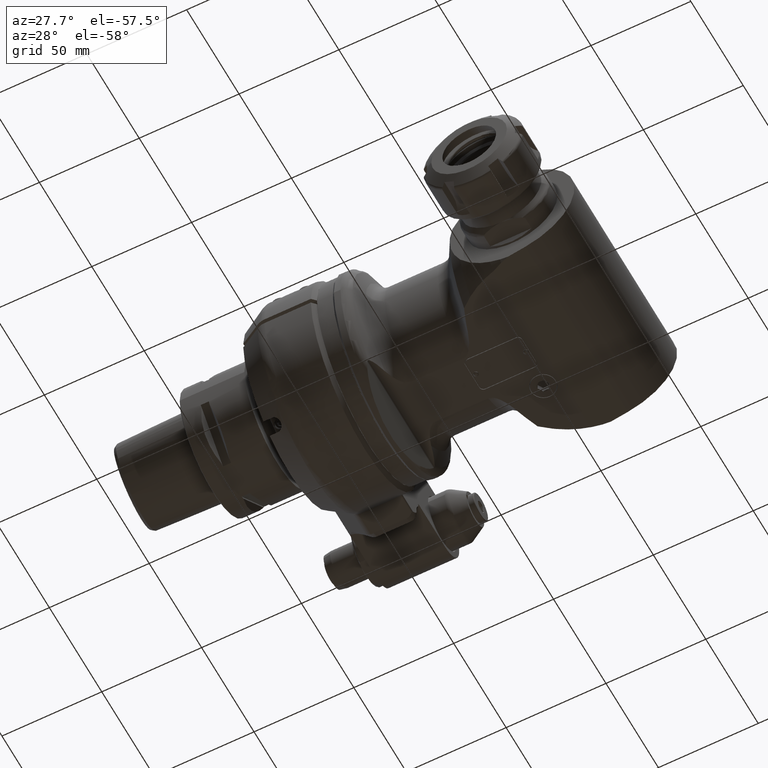
[diagram: clean part render]
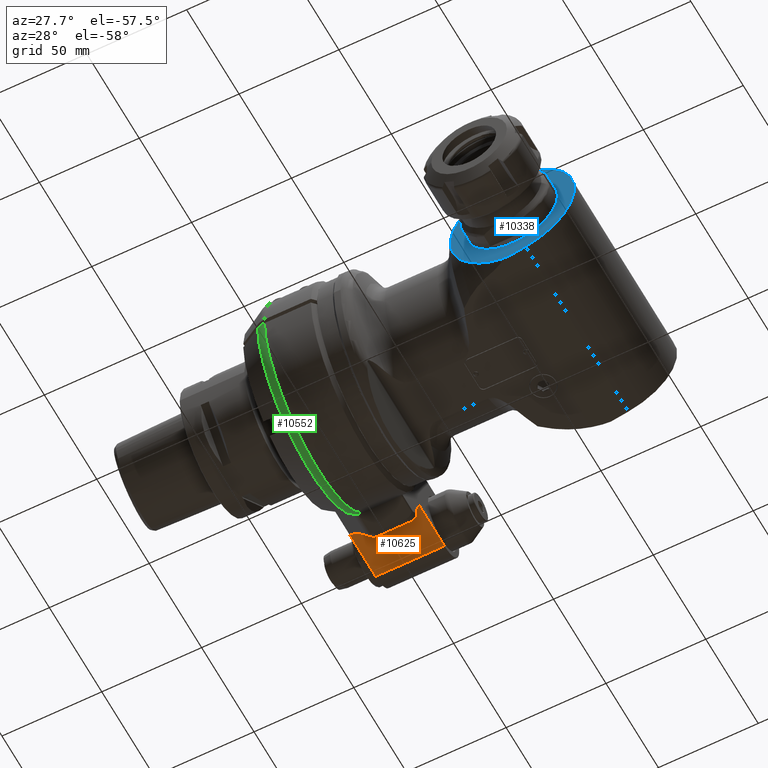
[diagram: same view with three faces highlighted in distinct colors, each labeled with its STEP entity id]
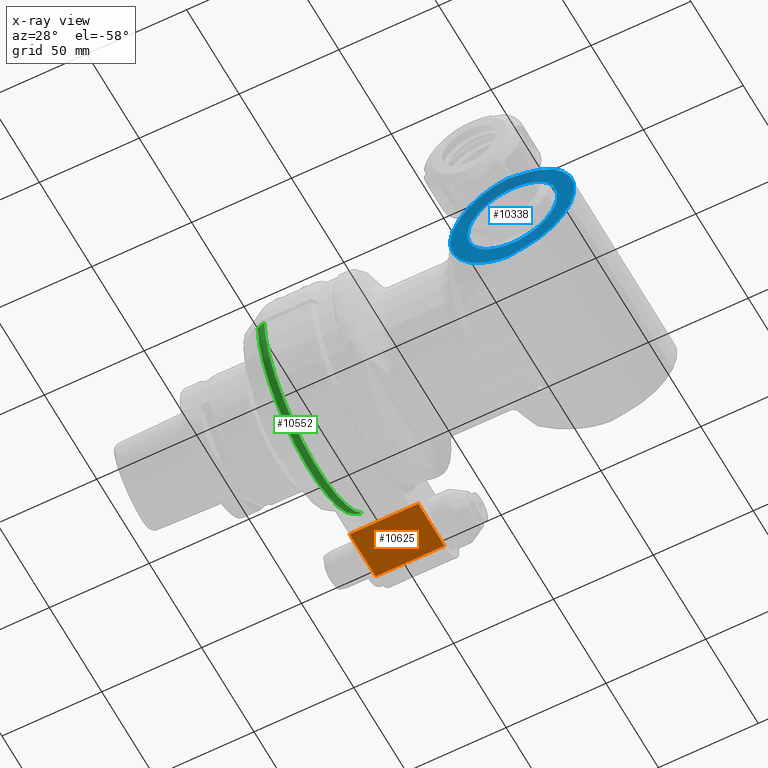
[diagram: x-ray of the same camera — body ghosted, the three highlighted faces saturated]
A machine part, auxiliary view with three faces highlighted in distinct colors.
The next image is the same camera in x-ray (body ghosted, the three faces saturated) — at least one of them is partly hidden behind the body in this view.
Their STEP definitions:

[orange] entity #10625 — the highlighted planar face has unit normal (0, 0, 1).
#1259=LINE('',#21717,#2024);
#1271=LINE('',#21766,#2036);
#1286=LINE('',#21808,#2051);
#1299=LINE('',#21846,#2064);
#2024=VECTOR('',#13361,25.);
#2036=VECTOR('',#13391,34.5);
#2051=VECTOR('',#13430,25.);
#2064=VECTOR('',#13473,34.5);
#2724=FACE_OUTER_BOUND('',#3339,.T.);
#3339=EDGE_LOOP('',(#8784,#8785,#8786,#8787));
#4741=VERTEX_POINT('',#21714);
#4742=VERTEX_POINT('',#21716);
#4761=VERTEX_POINT('',#21764);
#4773=VERTEX_POINT('',#21806);
#6126=EDGE_CURVE('',#4742,#4741,#1259,.T.);
#6148=EDGE_CURVE('',#4741,#4761,#1271,.T.);
#6169=EDGE_CURVE('',#4773,#4761,#1286,.T.);
#6189=EDGE_CURVE('',#4742,#4773,#1299,.T.);
#8784=ORIENTED_EDGE('',*,*,#6169,.F.);
#8785=ORIENTED_EDGE('',*,*,#6189,.F.);
#8786=ORIENTED_EDGE('',*,*,#6126,.T.);
#8787=ORIENTED_EDGE('',*,*,#6148,.T.);
#10197=PLANE('',#11473);
#10625=ADVANCED_FACE('',(#2724),#10197,.F.);
#11473=AXIS2_PLACEMENT_3D('',#21847,#13474,#13475);
#13361=DIRECTION('',(0.,-1.,0.));
#13391=DIRECTION('',(-1.,0.,0.));
#13430=DIRECTION('',(0.,-1.,0.));
#13473=DIRECTION('',(-1.,0.,0.));
#13474=DIRECTION('center_axis',(0.,0.,1.));
#13475=DIRECTION('ref_axis',(-1.,0.,0.));
#21714=CARTESIAN_POINT('',(-5.,57.25,-15.));
#21716=CARTESIAN_POINT('',(-5.,82.25,-15.));
#21717=CARTESIAN_POINT('',(-5.,82.25,-15.));
#21764=CARTESIAN_POINT('',(-39.5,57.25,-15.));
#21766=CARTESIAN_POINT('',(-5.,57.25,-15.));
#21806=CARTESIAN_POINT('',(-39.5,82.25,-15.));
#21808=CARTESIAN_POINT('',(-39.5,82.25,-15.));
#21846=CARTESIAN_POINT('',(-5.,82.25,-15.));
#21847=CARTESIAN_POINT('Origin',(-45.5,95.75,-15.));

[blue] entity #10338 — the highlighted planar face has unit normal (-0, -1, -0).
#228=(
BOUNDED_CURVE()
B_SPLINE_CURVE(2,(#14790,#14791,#14792),.UNSPECIFIED.,.F.,.F.)
B_SPLINE_CURVE_WITH_KNOTS((3,3),(-4.03042303379879,-3.48086593786656),
 .UNSPECIFIED.)
CURVE()
GEOMETRIC_REPRESENTATION_ITEM()
RATIONAL_B_SPLINE_CURVE((1.00758479886231,1.00783042569584,1.00786805298821))
REPRESENTATION_ITEM('')
);
#229=(
BOUNDED_CURVE()
B_SPLINE_CURVE(2,(#14795,#14796,#14797),.UNSPECIFIED.,.F.,.F.)
B_SPLINE_CURVE_WITH_KNOTS((3,3),(3.20708756850674,3.6230802469693),
 .UNSPECIFIED.)
CURVE()
GEOMETRIC_REPRESENTATION_ITEM()
RATIONAL_B_SPLINE_CURVE((1.00191676364348,1.00192044707155,1.00189283690553))
REPRESENTATION_ITEM('')
);
#230=(
BOUNDED_CURVE()
B_SPLINE_CURVE(2,(#14804,#14805,#14806),.UNSPECIFIED.,.F.,.F.)
B_SPLINE_CURVE_WITH_KNOTS((3,3),(-3.62308024667489,-3.20708756850674),
 .UNSPECIFIED.)
CURVE()
GEOMETRIC_REPRESENTATION_ITEM()
RATIONAL_B_SPLINE_CURVE((1.00189283690557,1.00192044707155,1.00191676364348))
REPRESENTATION_ITEM('')
);
#231=(
BOUNDED_CURVE()
B_SPLINE_CURVE(2,(#14808,#14809,#14810),.UNSPECIFIED.,.F.,.F.)
B_SPLINE_CURVE_WITH_KNOTS((3,3),(-4.03042302568929,-3.48086593755319),
 .UNSPECIFIED.)
CURVE()
GEOMETRIC_REPRESENTATION_ITEM()
RATIONAL_B_SPLINE_CURVE((1.00758479886956,1.00783042569654,1.00786805298825))
REPRESENTATION_ITEM('')
);
#232=(
BOUNDED_CURVE()
B_SPLINE_CURVE(2,(#14812,#14813,#14814),.UNSPECIFIED.,.F.,.F.)
B_SPLINE_CURVE_WITH_KNOTS((3,3),(-4.59394729422955,-3.96600201895405),
 .UNSPECIFIED.)
CURVE()
GEOMETRIC_REPRESENTATION_ITEM()
RATIONAL_B_SPLINE_CURVE((1.0170191739307,1.0179088753971,1.0182373633069))
REPRESENTATION_ITEM('')
);
#233=(
BOUNDED_CURVE()
B_SPLINE_CURVE(2,(#14816,#14817,#14818),.UNSPECIFIED.,.F.,.F.)
B_SPLINE_CURVE_WITH_KNOTS((3,3),(-5.37267851345797,-4.60245151242239),
 .UNSPECIFIED.)
CURVE()
GEOMETRIC_REPRESENTATION_ITEM()
RATIONAL_B_SPLINE_CURVE((1.03008187879672,1.03261146674929,1.03379752626134))
REPRESENTATION_ITEM('')
);
#234=(
BOUNDED_CURVE()
B_SPLINE_CURVE(2,(#14820,#14821,#14822),.UNSPECIFIED.,.F.,.F.)
B_SPLINE_CURVE_WITH_KNOTS((3,3),(-6.41278495679146,-5.36592678001913),
 .UNSPECIFIED.)
CURVE()
GEOMETRIC_REPRESENTATION_ITEM()
RATIONAL_B_SPLINE_CURVE((1.0510346879787,1.05766659348912,1.0607732138904))
REPRESENTATION_ITEM('')
);
#235=(
BOUNDED_CURVE()
B_SPLINE_CURVE(2,(#14824,#14825,#14826),.UNSPECIFIED.,.F.,.F.)
B_SPLINE_CURVE_WITH_KNOTS((3,3),(6.38102259223995,12.5133383101449),
 .UNSPECIFIED.)
CURVE()
GEOMETRIC_REPRESENTATION_ITEM()
RATIONAL_B_SPLINE_CURVE((1.33365869793948,1.41222892327313,1.33365869794272))
REPRESENTATION_ITEM('')
);
#236=(
BOUNDED_CURVE()
B_SPLINE_CURVE(2,(#14828,#14829,#14830),.UNSPECIFIED.,.F.,.F.)
B_SPLINE_CURVE_WITH_KNOTS((3,3),(2.47400310158886,3.52086127835959),
 .UNSPECIFIED.)
CURVE()
GEOMETRIC_REPRESENTATION_ITEM()
RATIONAL_B_SPLINE_CURVE((1.05103468797891,1.0576665934893,1.06077321389056))
REPRESENTATION_ITEM('')
);
#237=(
BOUNDED_CURVE()
B_SPLINE_CURVE(2,(#14832,#14833,#14834),.UNSPECIFIED.,.F.,.F.)
B_SPLINE_CURVE_WITH_KNOTS((3,3),(2.47232019756793,3.24254735063516),
 .UNSPECIFIED.)
CURVE()
GEOMETRIC_REPRESENTATION_ITEM()
RATIONAL_B_SPLINE_CURVE((1.03008187879674,1.03261146724862,1.03379752672957))
REPRESENTATION_ITEM('')
);
#238=(
BOUNDED_CURVE()
B_SPLINE_CURVE(2,(#14835,#14836,#14837),.UNSPECIFIED.,.F.,.F.)
B_SPLINE_CURVE_WITH_KNOTS((3,3),(2.6029626360924,3.23090775455804),
 .UNSPECIFIED.)
CURVE()
GEOMETRIC_REPRESENTATION_ITEM()
RATIONAL_B_SPLINE_CURVE((1.01701917435143,1.01790887546296,1.01823736329817))
REPRESENTATION_ITEM('')
);
#680=FACE_BOUND('',#3008,.T.);
#802=LINE('',#14776,#1567);
#803=LINE('',#14802,#1568);
#1567=VECTOR('',#11984,8.87507655635602);
#1568=VECTOR('',#11997,8.87507655635602);
#2437=FACE_OUTER_BOUND('',#3007,.T.);
#3007=EDGE_LOOP('',(#6905,#6906,#6907,#6908,#6909,#6910,#6911,#6912,#6913,
#6914,#6915,#6916,#6917,#6918));
#3008=EDGE_LOOP('',(#6919));
#3650=CIRCLE('',#10982,31.);
#3651=CIRCLE('',#10983,22.5);
#4088=VERTEX_POINT('',#14773);
#4089=VERTEX_POINT('',#14775);
#4091=VERTEX_POINT('',#14787);
#4092=VERTEX_POINT('',#14789);
#4093=VERTEX_POINT('',#14799);
#4094=VERTEX_POINT('',#14801);
#4095=VERTEX_POINT('',#14803);
#4096=VERTEX_POINT('',#14807);
#4097=VERTEX_POINT('',#14811);
#4098=VERTEX_POINT('',#14815);
#4099=VERTEX_POINT('',#14819);
#4100=VERTEX_POINT('',#14823);
#4101=VERTEX_POINT('',#14827);
#4102=VERTEX_POINT('',#14831);
#4103=VERTEX_POINT('',#14838);
#5243=EDGE_CURVE('',#4089,#4088,#802,.T.);
#5247=EDGE_CURVE('',#4092,#4091,#228,.T.);
#5249=EDGE_CURVE('',#4089,#4091,#229,.T.);
#5250=EDGE_CURVE('',#4088,#4093,#3650,.T.);
#5251=EDGE_CURVE('',#4093,#4094,#803,.T.);
#5252=EDGE_CURVE('',#4095,#4094,#230,.T.);
#5253=EDGE_CURVE('',#4096,#4095,#231,.T.);
#5254=EDGE_CURVE('',#4097,#4096,#232,.T.);
#5255=EDGE_CURVE('',#4098,#4097,#233,.T.);
#5256=EDGE_CURVE('',#4099,#4098,#234,.T.);
#5257=EDGE_CURVE('',#4099,#4100,#235,.T.);
#5258=EDGE_CURVE('',#4100,#4101,#236,.T.);
#5259=EDGE_CURVE('',#4101,#4102,#237,.T.);
#5260=EDGE_CURVE('',#4102,#4092,#238,.T.);
#5261=EDGE_CURVE('',#4103,#4103,#3651,.T.);
#6905=ORIENTED_EDGE('',*,*,#5250,.T.);
#6906=ORIENTED_EDGE('',*,*,#5251,.T.);
#6907=ORIENTED_EDGE('',*,*,#5252,.F.);
#6908=ORIENTED_EDGE('',*,*,#5253,.F.);
#6909=ORIENTED_EDGE('',*,*,#5254,.F.);
#6910=ORIENTED_EDGE('',*,*,#5255,.F.);
#6911=ORIENTED_EDGE('',*,*,#5256,.F.);
#6912=ORIENTED_EDGE('',*,*,#5257,.T.);
#6913=ORIENTED_EDGE('',*,*,#5258,.T.);
#6914=ORIENTED_EDGE('',*,*,#5259,.T.);
#6915=ORIENTED_EDGE('',*,*,#5260,.T.);
#6916=ORIENTED_EDGE('',*,*,#5247,.T.);
#6917=ORIENTED_EDGE('',*,*,#5249,.F.);
#6918=ORIENTED_EDGE('',*,*,#5243,.T.);
#6919=ORIENTED_EDGE('',*,*,#5261,.T.);
#10071=PLANE('',#10981);
#10338=ADVANCED_FACE('',(#2437,#680),#10071,.T.);
#10981=AXIS2_PLACEMENT_3D('',#14798,#11993,#11994);
#10982=AXIS2_PLACEMENT_3D('',#14800,#11995,#11996);
#10983=AXIS2_PLACEMENT_3D('',#14839,#11998,#11999);
#11984=DIRECTION('',(0.978147600733797,0.,0.207911690817799));
#11993=DIRECTION('center_axis',(0.,-1.,0.));
#11994=DIRECTION('ref_axis',(1.,0.,0.));
#11995=DIRECTION('center_axis',(0.,-1.,0.));
#11996=DIRECTION('ref_axis',(0.207911690816993,0.,-0.978147600733968));
#11997=DIRECTION('',(-0.978147600733797,0.,0.207911690817799));
#11998=DIRECTION('center_axis',(0.,1.,0.));
#11999=DIRECTION('ref_axis',(-1.,0.,0.));
#14773=CARTESIAN_POINT('',(284.5083594153,-49.,-30.32257562275));
#14775=CARTESIAN_POINT('',(275.8272245754,-49.,-32.16780779572));
#14776=CARTESIAN_POINT('',(275.8272245754,-49.,-32.16780779572));
#14787=CARTESIAN_POINT('',(271.759249419836,-49.0000000002981,-31.5146293898747));
#14789=CARTESIAN_POINT('',(266.7592493705,-49.0000000083841,-29.8533396467982));
#14790=CARTESIAN_POINT('Ctrl Pts',(266.759249364948,-49.,-29.8533396631987));
#14791=CARTESIAN_POINT('Ctrl Pts',(269.191571996042,-49.,-30.6776515802162));
#14792=CARTESIAN_POINT('Ctrl Pts',(271.759249419769,-49.,-31.5146293900795));
#14795=CARTESIAN_POINT('Ctrl Pts',(275.8272245754,-49.,-32.1678077957183));
#14796=CARTESIAN_POINT('Ctrl Pts',(273.772374781528,-49.,-31.8402240801089));
#14797=CARTESIAN_POINT('Ctrl Pts',(271.759249419725,-49.,-31.5146293905562));
#14798=CARTESIAN_POINT('Origin',(253.6737269458,-49.,-2.244324640789));
#14799=CARTESIAN_POINT('',(284.5083594153,-49.,30.32257562275));
#14800=CARTESIAN_POINT('Origin',(278.063097,-49.,0.));
#14801=CARTESIAN_POINT('',(275.8272245754,-49.,32.16780779572));
#14802=CARTESIAN_POINT('',(284.5083594153,-49.,30.32257562275));
#14803=CARTESIAN_POINT('',(271.7592494227,-49.,31.51462939104));
#14804=CARTESIAN_POINT('Ctrl Pts',(271.759249422575,-49.,31.514629391017));
#14805=CARTESIAN_POINT('Ctrl Pts',(273.772374782982,-49.,31.8402240803408));
#14806=CARTESIAN_POINT('Ctrl Pts',(275.8272245754,-49.,32.1678077957183));
#14807=CARTESIAN_POINT('',(266.759249435398,-48.9999999979614,29.8533396915202));
#14808=CARTESIAN_POINT('Ctrl Pts',(266.75924943675,-49.,29.8533396875324));
#14809=CARTESIAN_POINT('Ctrl Pts',(269.19157203532,-49.,30.6776515930374));
#14810=CARTESIAN_POINT('Ctrl Pts',(271.759249422697,-49.,31.514629391034));
#14811=CARTESIAN_POINT('',(261.759249673343,-48.9999999481181,27.1895796058644));
#14812=CARTESIAN_POINT('Ctrl Pts',(261.759249723115,-49.,27.1895795157773));
#14813=CARTESIAN_POINT('Ctrl Pts',(264.142505904142,-49.,28.5057265454366));
#14814=CARTESIAN_POINT('Ctrl Pts',(266.759249436299,-49.,29.8533396897722));
#14815=CARTESIAN_POINT('',(256.7592494227,-49.,23.20825135876));
#14816=CARTESIAN_POINT('Ctrl Pts',(256.759249422696,-49.,23.2082513587645));
#14817=CARTESIAN_POINT('Ctrl Pts',(259.061754535467,-49.,25.1660583058081));
#14818=CARTESIAN_POINT('Ctrl Pts',(261.759249705986,-49.,27.1895795623873));
#14819=CARTESIAN_POINT('',(251.7592494227,-49.,17.06560767263));
#14820=CARTESIAN_POINT('Ctrl Pts',(251.759249422662,-49.,17.0656076725937));
#14821=CARTESIAN_POINT('Ctrl Pts',(253.877944785256,-49.,20.0694406912643));
#14822=CARTESIAN_POINT('Ctrl Pts',(256.759249422692,-49.,23.2082513587661));
#14823=CARTESIAN_POINT('',(251.7592494227,-49.,-17.06560767264));
#14824=CARTESIAN_POINT('Ctrl Pts',(251.759249422844,-49.,17.0656076728981));
#14825=CARTESIAN_POINT('Ctrl Pts',(242.037427500105,-49.,3.32027738636498E-10));
#14826=CARTESIAN_POINT('Ctrl Pts',(251.75924942242,-49.,-17.0656076721535));
#14827=CARTESIAN_POINT('',(256.7592494227,-49.,-23.20825135876));
#14828=CARTESIAN_POINT('Ctrl Pts',(251.759249422667,-49.,-17.0656076726003));
#14829=CARTESIAN_POINT('Ctrl Pts',(253.877944785259,-49.,-20.0694406912677));
#14830=CARTESIAN_POINT('Ctrl Pts',(256.759249422692,-49.,-23.2082513587661));
#14831=CARTESIAN_POINT('',(261.759250614146,-48.9999997534502,-27.1895805666051));
#14832=CARTESIAN_POINT('Ctrl Pts',(256.759249422696,-49.,-23.2082513587645));
#14833=CARTESIAN_POINT('Ctrl Pts',(259.061754988835,-49.,-25.1660586913044));
#14834=CARTESIAN_POINT('Ctrl Pts',(261.759250769658,-49.,-27.1895803602989));
#14835=CARTESIAN_POINT('Ctrl Pts',(261.759250851079,-49.,-27.1895801386924));
#14836=CARTESIAN_POINT('Ctrl Pts',(264.142506491409,-49.,-28.5057268466984));
#14837=CARTESIAN_POINT('Ctrl Pts',(266.759249366808,-49.,-29.853339653985));
#14838=CARTESIAN_POINT('',(255.563097,-49.,0.));
#14839=CARTESIAN_POINT('Origin',(278.063097,-49.,0.));

[green] entity #10552 — the highlighted toroidal blend (fillet) surface has major radius 43 mm and minor (blend) radius 8 mm.
#506=B_SPLINE_CURVE_WITH_KNOTS('',3,(#21067,#21068,#21069,#21070,#21071,
#21072,#21073,#21074,#21075,#21076),.UNSPECIFIED.,.F.,.F.,(4,2,2,2,4),(2.65541910444733,
2.70524080459426,2.85666458403861,2.97095943510165,3.0852542861647),
 .UNSPECIFIED.);
#512=B_SPLINE_CURVE_WITH_KNOTS('',3,(#21209,#21210,#21211,#21212,#21213,
#21214,#21215,#21216),.UNSPECIFIED.,.F.,.F.,(4,2,2,4),(7.5173992896467E-10,
0.148073437647891,0.296146874544042,0.396151965412959),.UNSPECIFIED.);
#660=TOROIDAL_SURFACE('',#11348,43.,8.);
#2651=FACE_OUTER_BOUND('',#3256,.T.);
#3256=EDGE_LOOP('',(#8392,#8393,#8394,#8395));
#3787=CIRCLE('',#11320,51.);
#3802=CIRCLE('',#11345,49.92820323028);
#4612=VERTEX_POINT('',#21064);
#4613=VERTEX_POINT('',#21066);
#4624=VERTEX_POINT('',#21111);
#4636=VERTEX_POINT('',#21198);
#5937=EDGE_CURVE('',#4613,#4612,#506,.T.);
#5949=EDGE_CURVE('',#4612,#4624,#3787,.T.);
#5966=EDGE_CURVE('',#4624,#4636,#512,.T.);
#5992=EDGE_CURVE('',#4636,#4613,#3802,.T.);
#8392=ORIENTED_EDGE('',*,*,#5992,.T.);
#8393=ORIENTED_EDGE('',*,*,#5937,.T.);
#8394=ORIENTED_EDGE('',*,*,#5949,.T.);
#8395=ORIENTED_EDGE('',*,*,#5966,.T.);
#10552=ADVANCED_FACE('',(#2651),#660,.T.);
#11320=AXIS2_PLACEMENT_3D('',#21113,#13038,#13039);
#11345=AXIS2_PLACEMENT_3D('',#21312,#13105,#13106);
#11348=AXIS2_PLACEMENT_3D('',#21326,#13111,#13112);
#13038=DIRECTION('center_axis',(-1.,0.,0.));
#13039=DIRECTION('ref_axis',(0.,0.818627450980411,-0.574324904998308));
#13105=DIRECTION('center_axis',(1.,0.,0.));
#13106=DIRECTION('ref_axis',(0.,-0.999548602989596,-0.0300431400080999));
#13111=DIRECTION('center_axis',(1.,0.,0.));
#13112=DIRECTION('ref_axis',(0.,-1.,0.));
#21064=CARTESIAN_POINT('',(-25.23205080757,41.75,-29.29057015492));
#21066=CARTESIAN_POINT('',(-29.23205080757,41.75,-27.38180011986));
#21067=CARTESIAN_POINT('Ctrl Pts',(-29.2320508075675,41.75,-27.3818001198577));
#21068=CARTESIAN_POINT('Ctrl Pts',(-29.1084978721799,41.75,-27.5118698927609));
#21069=CARTESIAN_POINT('Ctrl Pts',(-28.9796012581369,41.75,-27.63883358715));
#21070=CARTESIAN_POINT('Ctrl Pts',(-28.4412749376929,41.75,-28.1311886381695));
#21071=CARTESIAN_POINT('Ctrl Pts',(-27.9932266664163,41.75,-28.4521983127449));
#21072=CARTESIAN_POINT('Ctrl Pts',(-27.2119237728328,41.75,-28.8694287521605));
#21073=CARTESIAN_POINT('Ctrl Pts',(-26.8258618631201,41.75,-29.0288082766981));
#21074=CARTESIAN_POINT('Ctrl Pts',(-26.0264941442551,41.75,-29.2396724058848));
#21075=CARTESIAN_POINT('Ctrl Pts',(-25.6130336444468,41.75,-29.290570154915));
#21076=CARTESIAN_POINT('Ctrl Pts',(-25.23205080757,41.75,-29.290570154915));
#21111=CARTESIAN_POINT('',(-25.2320508150874,-50.9779364043201,-1.49999998570621));
#21113=CARTESIAN_POINT('Origin',(-25.23205080757,0.,0.));
#21198=CARTESIAN_POINT('',(-29.2320595617708,-49.9056607292726,-1.50000007595379));
#21209=CARTESIAN_POINT('Ctrl Pts',(-25.2320508150874,-50.9779364038993,
-1.5));
#21210=CARTESIAN_POINT('Ctrl Pts',(-25.7256289390112,-50.9779364034353,
-1.5));
#21211=CARTESIAN_POINT('Ctrl Pts',(-26.2646778846743,-50.9292248693062,
-1.5));
#21212=CARTESIAN_POINT('Ctrl Pts',(-27.3203684112507,-50.7191785472564,
-1.5));
#21213=CARTESIAN_POINT('Ctrl Pts',(-27.8370100654999,-50.5578441661684,
-1.5));
#21214=CARTESIAN_POINT('Ctrl Pts',(-28.6009648918524,-50.2413261612742,
-1.5));
#21215=CARTESIAN_POINT('Ctrl Pts',(-28.9199634449429,-50.0859314086734,
-1.5));
#21216=CARTESIAN_POINT('Ctrl Pts',(-29.2320595629834,-49.905660731372,-1.5));
#21312=CARTESIAN_POINT('Origin',(-29.23205080757,0.,0.));
#21326=CARTESIAN_POINT('Origin',(-25.23205080757,0.,0.));